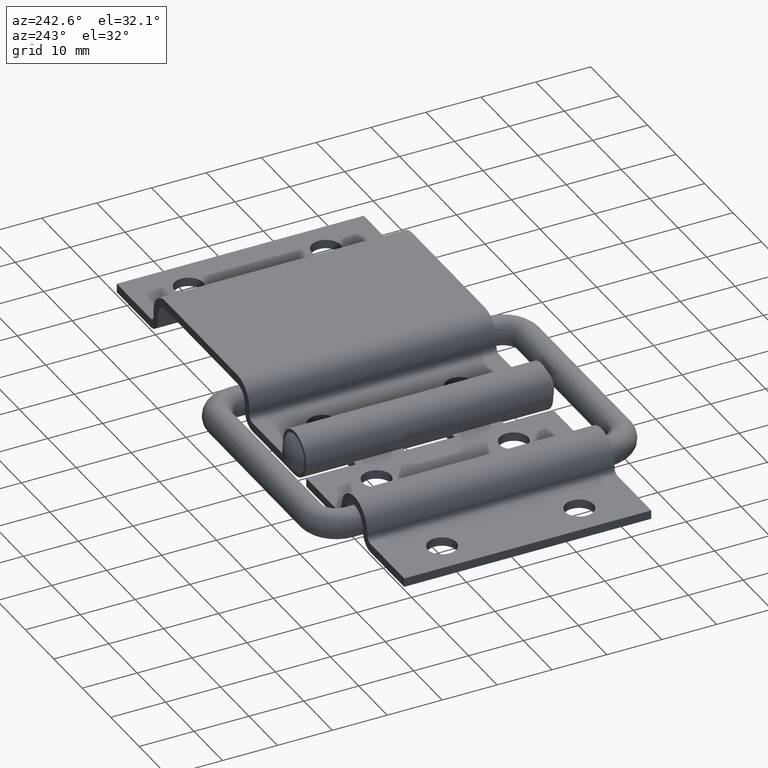
[diagram: clean part render]
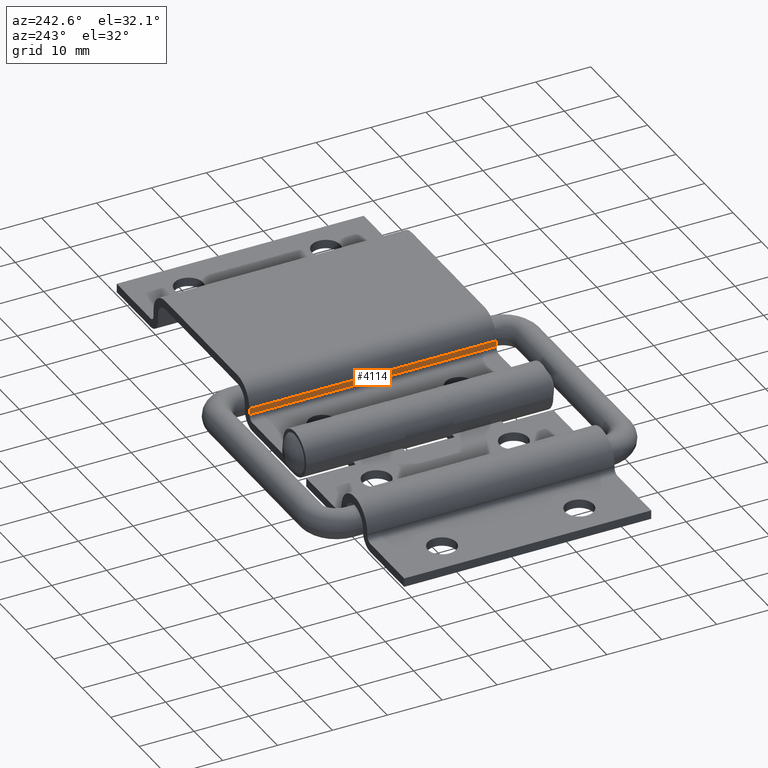
[diagram: same view with one face highlighted and labeled with its STEP entity id]
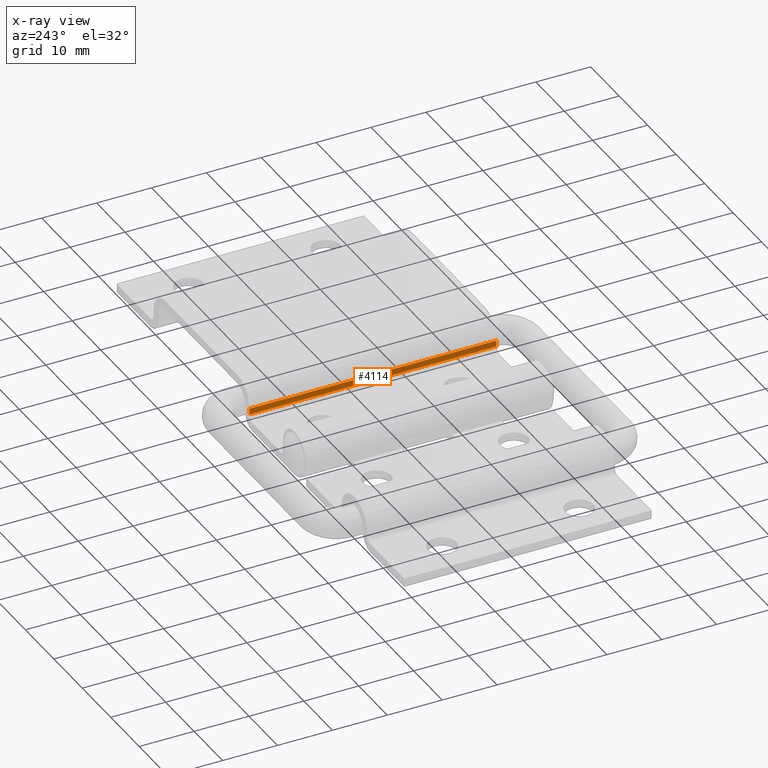
[diagram: x-ray of the same camera — body ghosted, the highlighted face saturated]
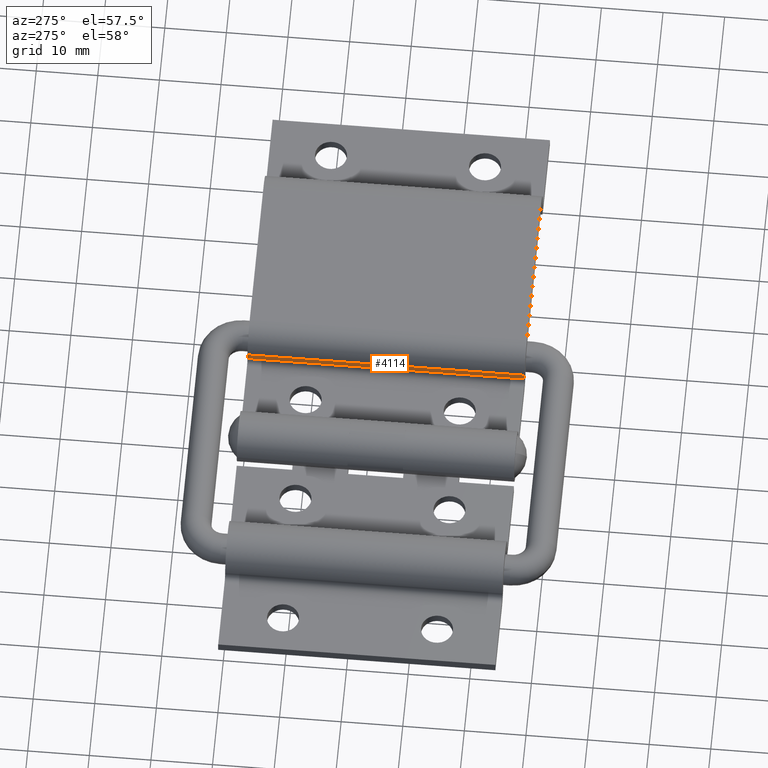
[diagram: same view with one face highlighted and labeled with its STEP entity id]
A machine part, auxiliary view. The second image highlights one B-rep face of the part: STEP entity #4114.
The next image is the same camera in x-ray: the body ghosted, the highlighted face saturated — about 0% of this face is hidden behind the body in this view.
A second angle (auxiliary view) of the same face is appended — the face is thin or edge-on in the first view.
In plain terms, the highlighted planar face has unit normal (1, 0, -0).
Its self-contained STEP definition (entity closure, byte-faithful):
#262 = CARTESIAN_POINT ( 'NONE',  ( 15.89999400000000100, 0.3999980000000090700, 0.0000000000000000000 ) ) ;
#472 = ORIENTED_EDGE ( 'NONE', *, *, #965, .T. ) ;
#480 = LINE ( 'NONE', #1580, #2274 ) ;
#552 = VECTOR ( 'NONE', #2261, 1000.000000000000000 ) ;
#563 = VERTEX_POINT ( 'NONE', #1095 ) ;
#663 = LINE ( 'NONE', #933, #4087 ) ;
#665 = CARTESIAN_POINT ( 'NONE',  ( 15.89999400000000100, 1.499998000000008400, 45.00000000000002100 ) ) ;
#771 = ORIENTED_EDGE ( 'NONE', *, *, #2049, .F. ) ;
#807 = DIRECTION ( 'NONE',  ( -6.977452323041141200E-016, 1.000000000000000000, 0.0000000000000000000 ) ) ;
#848 = AXIS2_PLACEMENT_3D ( 'NONE', #3449, #2802, #807 ) ;
#933 = CARTESIAN_POINT ( 'NONE',  ( 15.89999400000000500, -3.700001999999988900, 45.00000000000002100 ) ) ;
#965 = EDGE_CURVE ( 'NONE', #563, #4026, #663, .T. ) ;
#1095 = CARTESIAN_POINT ( 'NONE',  ( 15.89999400000000100, 0.3999980000000090700, 45.00000000000002100 ) ) ;
#1239 = ORIENTED_EDGE ( 'NONE', *, *, #3340, .T. ) ;
#1580 = CARTESIAN_POINT ( 'NONE',  ( 15.89999400000000100, 1.499998000000010200, 0.0000000000000000000 ) ) ;
#1632 = DIRECTION ( 'NONE',  ( -0.0000000000000000000, -0.0000000000000000000, 1.000000000000000000 ) ) ;
#1820 = VERTEX_POINT ( 'NONE', #4141 ) ;
#1976 = LINE ( 'NONE', #3275, #3627 ) ;
#2049 = EDGE_CURVE ( 'NONE', #3851, #1820, #2347, .T. ) ;
#2120 = ORIENTED_EDGE ( 'NONE', *, *, #3245, .T. ) ;
#2178 = EDGE_LOOP ( 'NONE', ( #771, #1239, #472, #2120 ) ) ;
#2261 = DIRECTION ( 'NONE',  ( -6.977452323041141200E-016, 1.000000000000000000, -0.0000000000000000000 ) ) ;
#2274 = VECTOR ( 'NONE', #3552, 1000.000000000000000 ) ;
#2347 = LINE ( 'NONE', #3917, #552 ) ;
#2464 = PLANE ( 'NONE',  #848 ) ;
#2628 = DIRECTION ( 'NONE',  ( -6.977452323041141200E-016, 1.000000000000000000, -0.0000000000000000000 ) ) ;
#2802 = DIRECTION ( 'NONE',  ( 1.000000000000000000, 6.977452323041141200E-016, -0.0000000000000000000 ) ) ;
#3245 = EDGE_CURVE ( 'NONE', #4026, #1820, #480, .T. ) ;
#3275 = CARTESIAN_POINT ( 'NONE',  ( 15.89999400000000100, 0.3999980000000107900, 0.0000000000000000000 ) ) ;
#3340 = EDGE_CURVE ( 'NONE', #3851, #563, #1976, .T. ) ;
#3449 = CARTESIAN_POINT ( 'NONE',  ( 15.89999400000000500, -3.700001999999988900, 0.0000000000000000000 ) ) ;
#3552 = DIRECTION ( 'NONE',  ( 0.0000000000000000000, 0.0000000000000000000, -1.000000000000000000 ) ) ;
#3627 = VECTOR ( 'NONE', #1632, 1000.000000000000000 ) ;
#3795 = FACE_OUTER_BOUND ( 'NONE', #2178, .T. ) ;
#3851 = VERTEX_POINT ( 'NONE', #262 ) ;
#3917 = CARTESIAN_POINT ( 'NONE',  ( 15.89999400000000500, -3.700001999999988900, 0.0000000000000000000 ) ) ;
#4026 = VERTEX_POINT ( 'NONE', #665 ) ;
#4087 = VECTOR ( 'NONE', #2628, 1000.000000000000000 ) ;
#4114 = ADVANCED_FACE ( 'NONE', ( #3795 ), #2464, .F. ) ;
#4141 = CARTESIAN_POINT ( 'NONE',  ( 15.89999400000000100, 1.499998000000008400, 0.0000000000000000000 ) ) ;